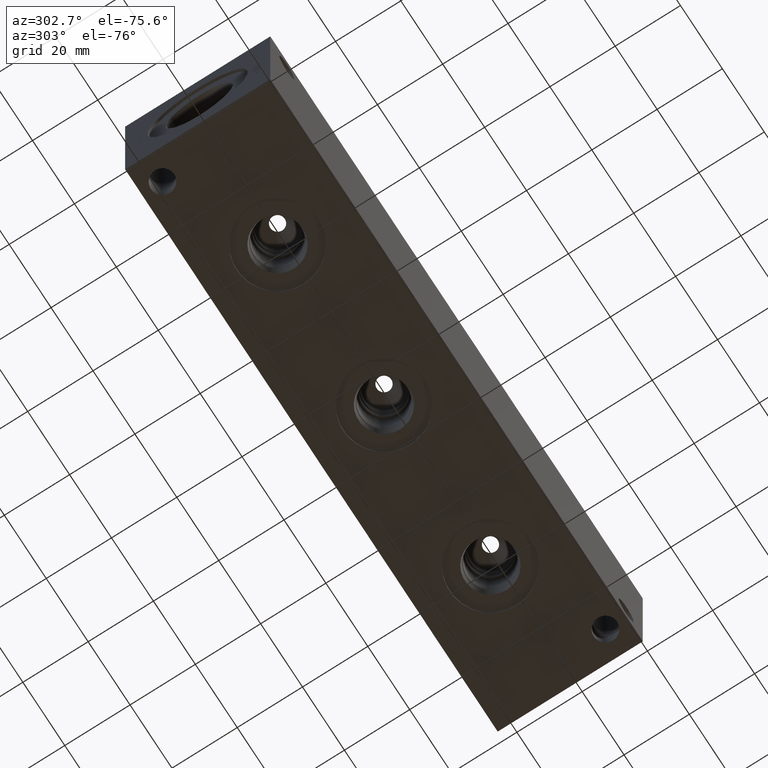
[diagram: clean part render]
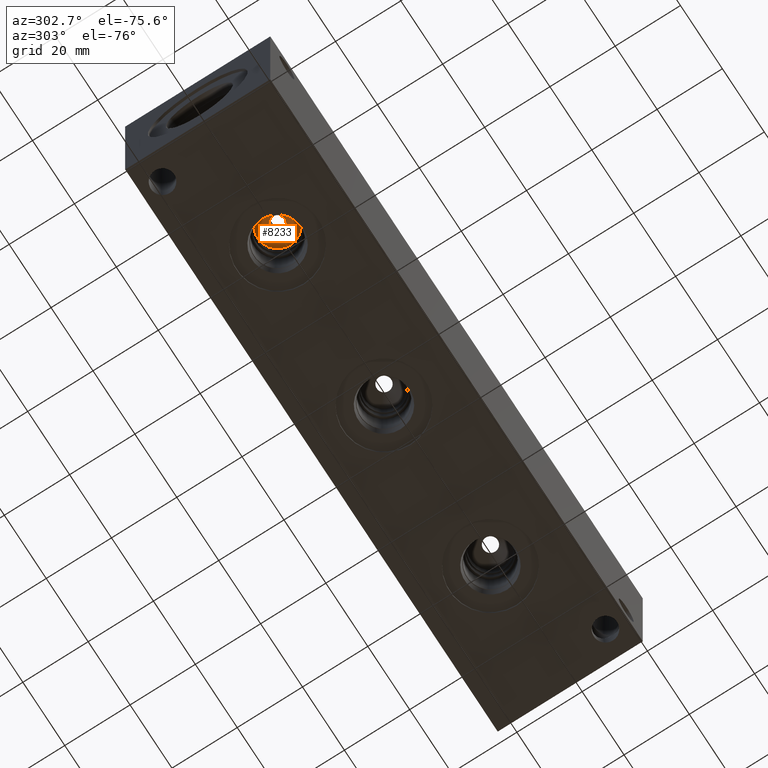
[diagram: same view with one face highlighted and labeled with its STEP entity id]
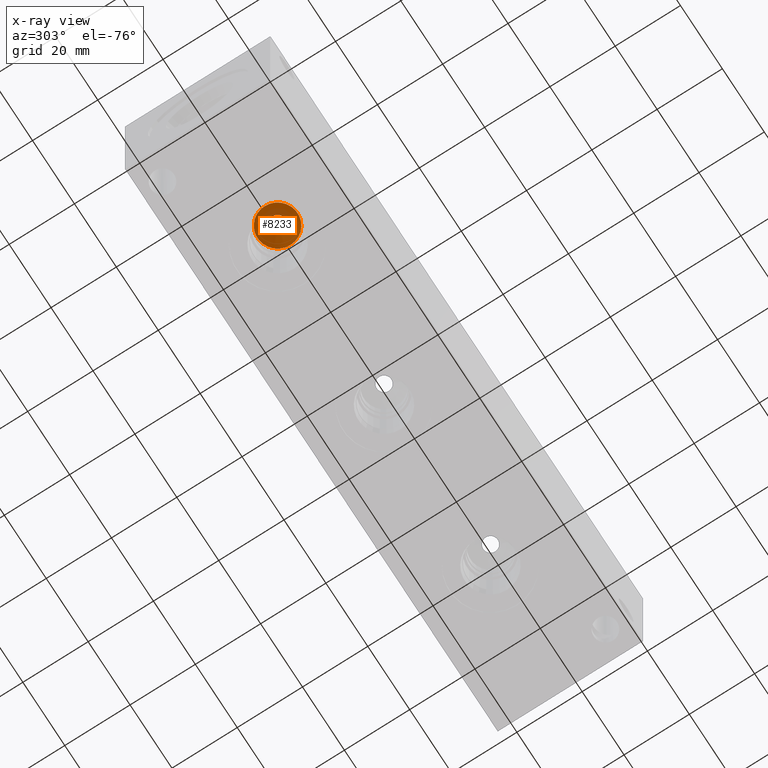
[diagram: x-ray of the same camera — body ghosted, the highlighted face saturated]
A machine part, auxiliary view. The second image highlights one B-rep face of the part: STEP entity #8233.
The next image is the same camera in x-ray: the body ghosted, the highlighted face saturated — about 11% of this face is hidden behind the body in this view.
In plain terms, the highlighted conical surface has half-angle 60 deg.
Its self-contained STEP definition (entity closure, byte-faithful):
#27=CONICAL_SURFACE('',#8592,3.0734,1.0471975511966);
#138=CIRCLE('',#8593,6.1468);
#139=CIRCLE('',#8594,2.23147316872844);
#140=CIRCLE('',#8595,6.1468);
#897=FACE_OUTER_BOUND('',#1359,.T.);
#1359=EDGE_LOOP('',(#6998,#6999,#7000,#7001,#7002));
#2143=LINE('',#13996,#2890);
#2890=VECTOR('',#10008,3.0734);
#3838=VERTEX_POINT('',#13992);
#3839=VERTEX_POINT('',#13993);
#3840=VERTEX_POINT('',#13995);
#4922=EDGE_CURVE('',#3838,#3839,#138,.T.);
#4923=EDGE_CURVE('',#3839,#3840,#2143,.T.);
#4924=EDGE_CURVE('',#3840,#3840,#139,.T.);
#4925=EDGE_CURVE('',#3839,#3838,#140,.T.);
#6998=ORIENTED_EDGE('',*,*,#4922,.T.);
#6999=ORIENTED_EDGE('',*,*,#4923,.T.);
#7000=ORIENTED_EDGE('',*,*,#4924,.F.);
#7001=ORIENTED_EDGE('',*,*,#4923,.F.);
#7002=ORIENTED_EDGE('',*,*,#4925,.T.);
#8233=ADVANCED_FACE('',(#897),#27,.F.);
#8592=AXIS2_PLACEMENT_3D('',#13991,#10004,#10005);
#8593=AXIS2_PLACEMENT_3D('',#13994,#10006,#10007);
#8594=AXIS2_PLACEMENT_3D('',#13997,#10009,#10010);
#8595=AXIS2_PLACEMENT_3D('',#13998,#10011,#10012);
#10004=DIRECTION('center_axis',(0.,0.,-1.));
#10005=DIRECTION('ref_axis',(1.,0.,0.));
#10006=DIRECTION('center_axis',(0.,0.,-1.));
#10007=DIRECTION('ref_axis',(1.,0.,0.));
#10008=DIRECTION('',(0.866025403784438,-1.06057523872491E-16,0.5));
#10009=DIRECTION('center_axis',(0.,0.,-1.));
#10010=DIRECTION('ref_axis',(1.,0.,0.));
#10011=DIRECTION('center_axis',(0.,0.,-1.));
#10012=DIRECTION('ref_axis',(1.,0.,0.));
#13991=CARTESIAN_POINT('Origin',(38.1,22.225,21.7381483173274));
#13992=CARTESIAN_POINT('',(44.2468,22.225,19.96372));
#13993=CARTESIAN_POINT('',(31.9532,22.225,19.96372));
#13994=CARTESIAN_POINT('Origin',(38.1,22.225,19.96372));
#13995=CARTESIAN_POINT('',(35.8685268312716,22.225,22.224235));
#13996=CARTESIAN_POINT('',(35.0266,22.225,21.7381483173274));
#13997=CARTESIAN_POINT('Origin',(38.1,22.225,22.224235));
#13998=CARTESIAN_POINT('Origin',(38.1,22.225,19.96372));